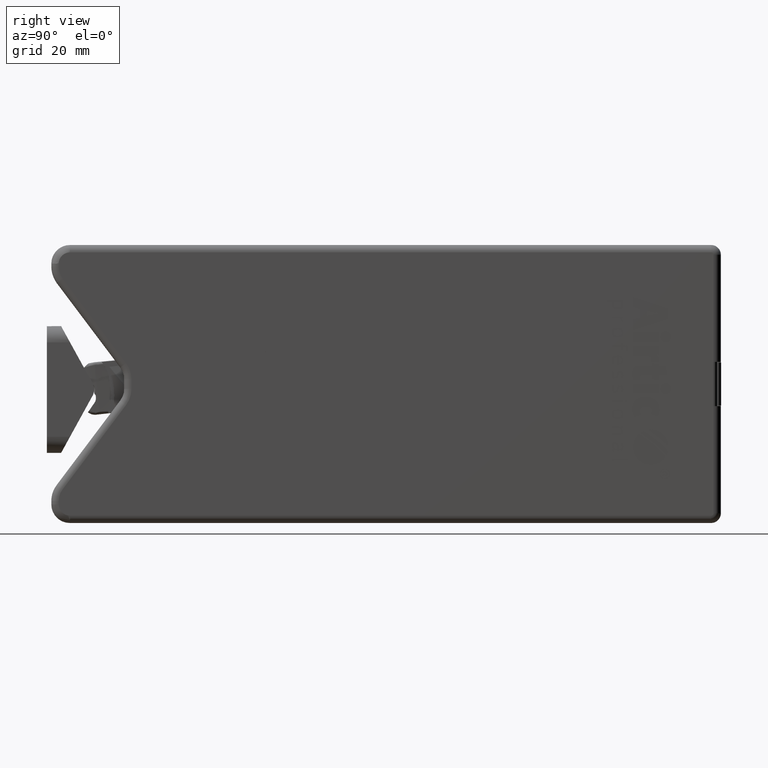
[diagram: clean part render]
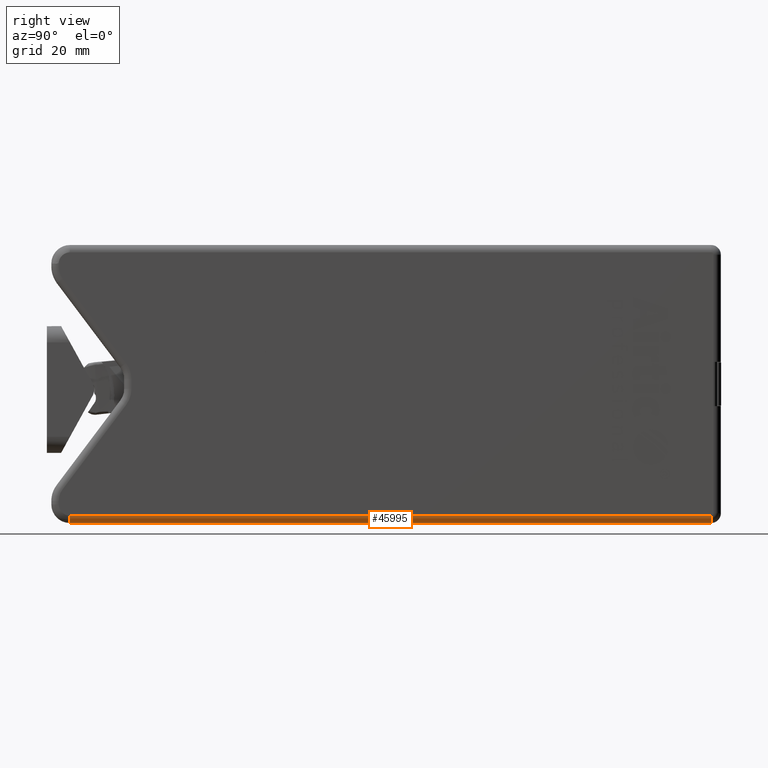
[diagram: same view with one face highlighted and labeled with its STEP entity id]
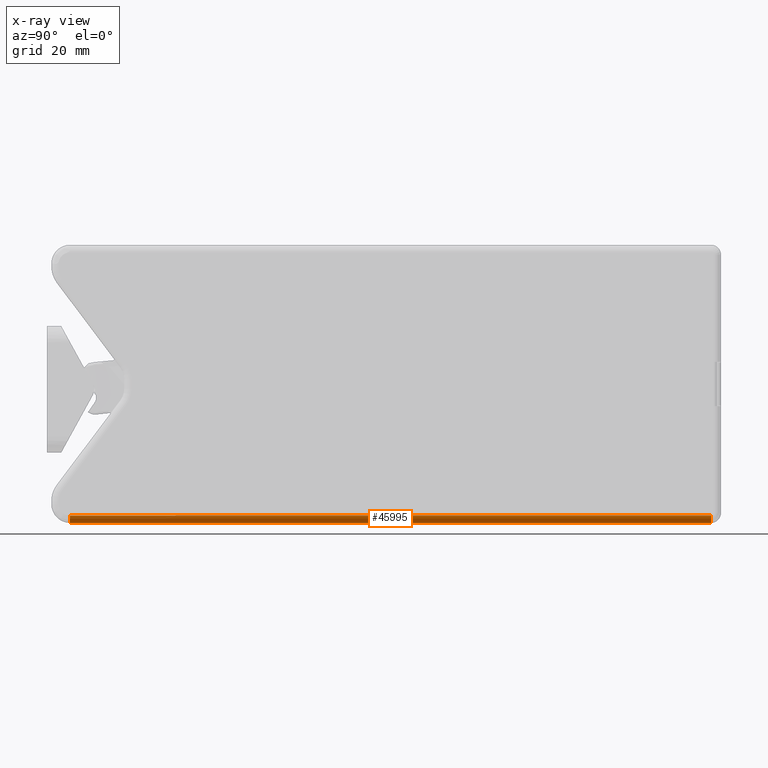
[diagram: x-ray of the same camera — body ghosted, the highlighted face saturated]
A machine part, right view. The second image highlights one B-rep face of the part: STEP entity #45995.
The next image is the same camera in x-ray: the body ghosted, the highlighted face saturated — about 0% of this face is hidden behind the body in this view.
In plain terms, the highlighted cylindrical surface (edge-blend (fillet) strip) has radius 2.5 mm, axis along (-0, -1, 0).
Its self-contained STEP definition (entity closure, byte-faithful):
#47 = ORIENTED_EDGE ( 'NONE', *, *, #56560, .F. ) ;
#4715 = DIRECTION ( 'NONE',  ( 1.000000000000000000, 0.0000000000000000000, 0.0000000000000000000 ) ) ;
#5811 = ORIENTED_EDGE ( 'NONE', *, *, #12323, .F. ) ;
#9901 = FACE_OUTER_BOUND ( 'NONE', #37102, .T. ) ;
#10269 = DIRECTION ( 'NONE',  ( -1.000000000000000000, 0.0000000000000000000, 0.0000000000000000000 ) ) ;
#12323 = EDGE_CURVE ( 'NONE', #34801, #39034, #18599, .T. ) ;
#13562 = CARTESIAN_POINT ( 'NONE',  ( -97.23110533220942400, -9.477899999993917700, 2.713311759058889500 ) ) ;
#18599 = LINE ( 'NONE', #38679, #46946 ) ;
#19263 = DIRECTION ( 'NONE',  ( -1.110223024625156500E-014, 0.0000000000000000000, 1.000000000000000000 ) ) ;
#20057 = VECTOR ( 'NONE', #25850, 1000.000000000000000 ) ;
#20212 = DIRECTION ( 'NONE',  ( 0.0000000000000000000, 0.0000000000000000000, 1.000000000000000000 ) ) ;
#25850 = DIRECTION ( 'NONE',  ( -1.000000000000000000, 0.0000000000000000000, 0.0000000000000000000 ) ) ;
#25892 = DIRECTION ( 'NONE',  ( -1.000000000000000000, 0.0000000000000000000, 0.0000000000000000000 ) ) ;
#26755 = AXIS2_PLACEMENT_3D ( 'NONE', #13562, #53200, #19263 ) ;
#31599 = CARTESIAN_POINT ( 'NONE',  ( -112.5764753639571700, -9.477899999993917700, 2.713311759058889500 ) ) ;
#34801 = VERTEX_POINT ( 'NONE', #66433 ) ;
#35635 = CARTESIAN_POINT ( 'NONE',  ( -97.23110533220942400, -11.97789999999391800, 2.713311759058888200 ) ) ;
#35762 = CARTESIAN_POINT ( 'NONE',  ( 120.0864778059239800, -9.477899999993917700, 5.213311759058889500 ) ) ;
#37102 = EDGE_LOOP ( 'NONE', ( #39901, #5811, #38003, #47 ) ) ;
#37192 = CIRCLE ( 'NONE', #26755, 2.500000000000000000 ) ;
#37264 = CARTESIAN_POINT ( 'NONE',  ( 120.0864778059239800, -11.97789999999391800, 2.713311759058888200 ) ) ;
#38003 = ORIENTED_EDGE ( 'NONE', *, *, #39457, .F. ) ;
#38679 = CARTESIAN_POINT ( 'NONE',  ( 120.0864778059239900, -9.477899999993917700, 5.213311759058889500 ) ) ;
#39034 = VERTEX_POINT ( 'NONE', #35762 ) ;
#39457 = EDGE_CURVE ( 'NONE', #41921, #34801, #37192, .T. ) ;
#39901 = ORIENTED_EDGE ( 'NONE', *, *, #70630, .T. ) ;
#41921 = VERTEX_POINT ( 'NONE', #35635 ) ;
#44171 = AXIS2_PLACEMENT_3D ( 'NONE', #31599, #25892, #20212 ) ;
#44257 = CARTESIAN_POINT ( 'NONE',  ( 120.0864778059239800, -9.477899999993917700, 2.713311759058888200 ) ) ;
#45995 = ADVANCED_FACE ( 'NONE', ( #9901 ), #51607, .T. ) ;
#46946 = VECTOR ( 'NONE', #4715, 1000.000000000000000 ) ;
#49946 = DIRECTION ( 'NONE',  ( 0.0000000000000000000, 0.0000000000000000000, 1.000000000000000000 ) ) ;
#51607 = CYLINDRICAL_SURFACE ( 'NONE', #44171, 2.500000000000000000 ) ;
#53200 = DIRECTION ( 'NONE',  ( -1.000000000000000000, -0.0000000000000000000, -1.110223024625156500E-014 ) ) ;
#54135 = CARTESIAN_POINT ( 'NONE',  ( -97.23110533220942400, -11.97789999999391800, 2.713311759058889500 ) ) ;
#56560 = EDGE_CURVE ( 'NONE', #65544, #41921, #65277, .T. ) ;
#61147 = AXIS2_PLACEMENT_3D ( 'NONE', #44257, #10269, #49946 ) ;
#61245 = CIRCLE ( 'NONE', #61147, 2.500000000000000400 ) ;
#65277 = LINE ( 'NONE', #54135, #20057 ) ;
#65544 = VERTEX_POINT ( 'NONE', #37264 ) ;
#66433 = CARTESIAN_POINT ( 'NONE',  ( -97.23110533220945200, -9.477899999993917700, 5.213311759058889500 ) ) ;
#70630 = EDGE_CURVE ( 'NONE', #65544, #39034, #61245, .T. ) ;